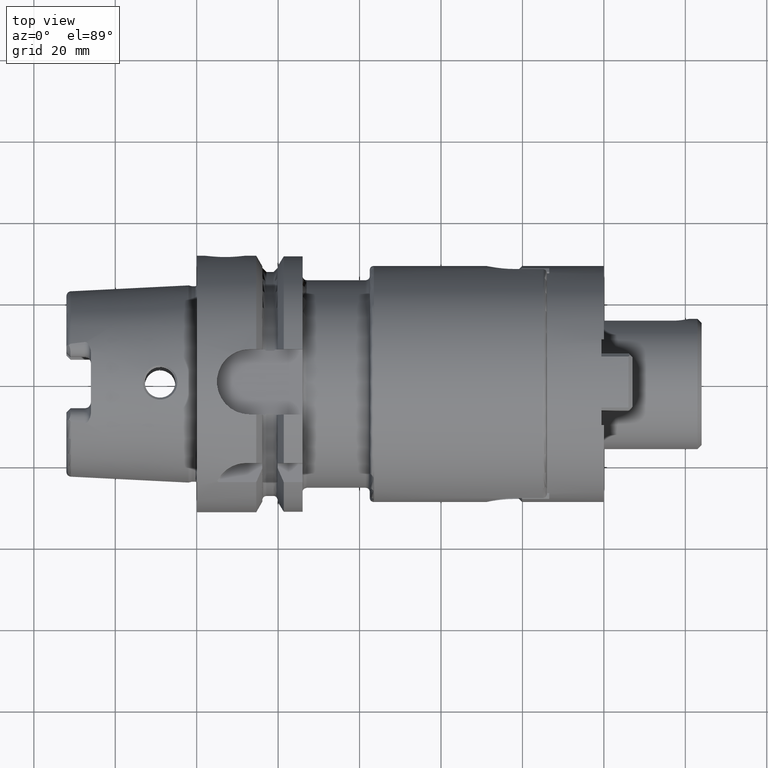
[diagram: clean part render]
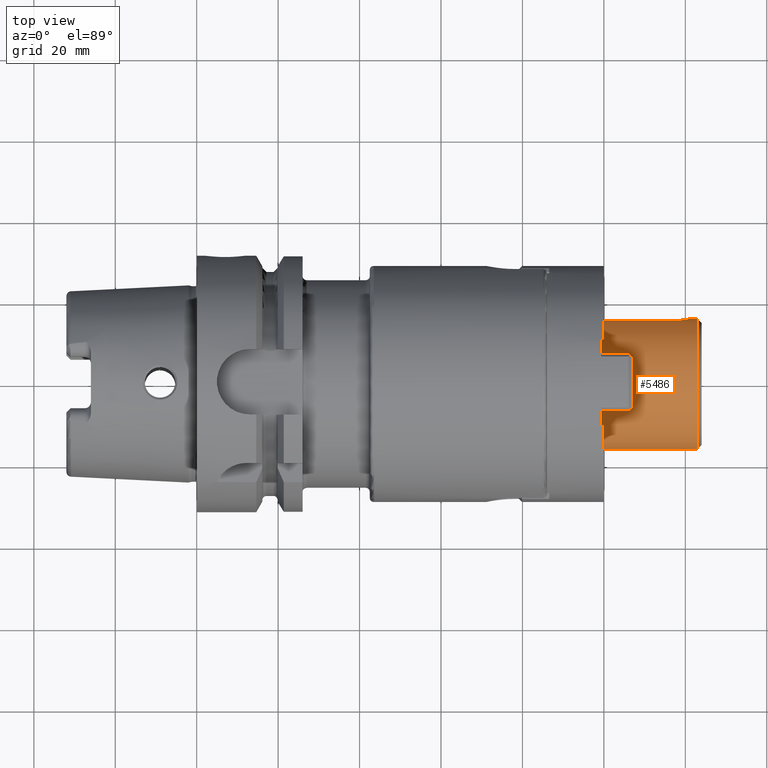
[diagram: same view with one face highlighted and labeled with its STEP entity id]
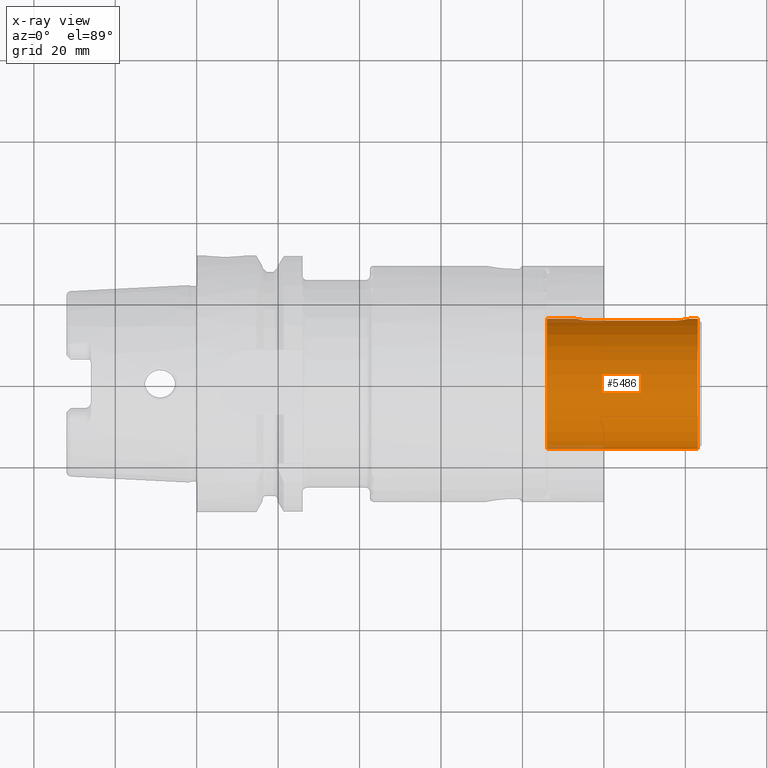
[diagram: x-ray of the same camera — body ghosted, the highlighted face saturated]
A machine part, top view. The second image highlights one B-rep face of the part: STEP entity #5486.
The next image is the same camera in x-ray: the body ghosted, the highlighted face saturated — about 2% of this face is hidden behind the body in this view.
In plain terms, the highlighted cylindrical surface (partial cylindrical patch) has radius 16 mm, axis along (1, 0, 0).
Its self-contained STEP definition (entity closure, byte-faithful):
#1717=CARTESIAN_POINT('',(8.6E1,0.E0,0.E0));
#1718=DIRECTION('',(1.E0,0.E0,0.E0));
#1719=DIRECTION('',(0.E0,1.E0,0.E0));
#1720=AXIS2_PLACEMENT_3D('',#1717,#1718,#1719);
#1751=CARTESIAN_POINT('',(9.7E1,1.549193338483E1,4.E0));
#1752=CARTESIAN_POINT('',(9.682754625117E1,1.549193338483E1,4.E0));
#1753=CARTESIAN_POINT('',(9.648490050717E1,1.549763689665E1,3.978016313828E0));
#1754=CARTESIAN_POINT('',(9.597111649558E1,1.552333121321E1,3.877139360685E0));
#1755=CARTESIAN_POINT('',(9.547731858337E1,1.556408795040E1,3.711200175580E0));
#1756=CARTESIAN_POINT('',(9.500268212371E1,1.561795270892E1,3.478997782392E0));
#1757=CARTESIAN_POINT('',(9.456439721350E1,1.568039695486E1,3.187609020525E0));
#1758=CARTESIAN_POINT('',(9.416385215560E1,1.574795166074E1,2.837391082703E0));
#1759=CARTESIAN_POINT('',(9.381430736657E1,1.581505117669E1,2.438064060044E0));
#1760=CARTESIAN_POINT('',(9.352213755215E1,1.587683135682E1,1.999358967834E0));
#1761=CARTESIAN_POINT('',(9.328975746136E1,1.592964315947E1,1.524965401602E0));
#1762=CARTESIAN_POINT('',(9.312340991902E1,1.596942629393E1,1.031125087648E0));
#1763=CARTESIAN_POINT('',(9.302202020907E1,1.599447139945E1,5.158676151810E-1));
#1764=CARTESIAN_POINT('',(9.3E1,1.6E1,1.726405151608E-1));
#1765=CARTESIAN_POINT('',(9.3E1,1.6E1,0.E0));
#1767=DIRECTION('',(1.E0,0.E0,0.E0));
#1768=VECTOR('',#1767,2.E1);
#1769=CARTESIAN_POINT('',(9.7E1,1.549193338483E1,4.E0));
#1770=LINE('',#1769,#1768);
#1771=CARTESIAN_POINT('',(1.21E2,1.6E1,1.226682872897E-14));
#1772=CARTESIAN_POINT('',(1.21E2,1.6E1,1.726589244203E-1));
#1773=CARTESIAN_POINT('',(1.209779666288E2,1.599446815581E1,5.158800734638E-1));
#1774=CARTESIAN_POINT('',(1.208766751200E2,1.596944731320E1,1.030754237697E0));
#1775=CARTESIAN_POINT('',(1.207104093979E2,1.592968189404E1,1.524578119858E0));
#1776=CARTESIAN_POINT('',(1.204780103247E2,1.587686451484E1,1.999089924386E0));
#1777=CARTESIAN_POINT('',(1.201860066259E2,1.581511406795E1,2.437661759897E0));
#1778=CARTESIAN_POINT('',(1.198362642769E2,1.574797228357E1,2.837283258798E0));
#1779=CARTESIAN_POINT('',(1.194358669655E2,1.568043901818E1,3.187399225475E0));
#1780=CARTESIAN_POINT('',(1.189975189646E2,1.561797673711E1,3.478894155104E0));
#1781=CARTESIAN_POINT('',(1.185227472522E2,1.556409439757E1,3.711173319233E0));
#1782=CARTESIAN_POINT('',(1.180289885413E2,1.552333698612E1,3.877116550135E0));
#1783=CARTESIAN_POINT('',(1.175149776952E2,1.549763141467E1,3.978037807507E0));
#1784=CARTESIAN_POINT('',(1.171723987797E2,1.549193338483E1,4.E0));
#1785=CARTESIAN_POINT('',(1.17E2,1.549193338483E1,4.E0));
#1787=CARTESIAN_POINT('',(1.23E2,0.E0,0.E0));
#1788=DIRECTION('',(-1.E0,0.E0,0.E0));
#1789=DIRECTION('',(0.E0,-1.E0,0.E0));
#1790=AXIS2_PLACEMENT_3D('',#1787,#1788,#1789);
#1812=DIRECTION('',(-1.E0,0.E0,0.E0));
#1813=VECTOR('',#1812,7.E0);
#1814=CARTESIAN_POINT('',(9.3E1,1.6E1,0.E0));
#1815=LINE('',#1814,#1813);
#1816=DIRECTION('',(-1.E0,-6.337273048671E-14,-7.077645286451E-13));
#1817=VECTOR('',#1816,3.7E1);
#1818=CARTESIAN_POINT('',(1.23E2,-1.6E1,2.618598126995E-11));
#1819=LINE('',#1818,#1817);
#1825=DIRECTION('',(-1.E0,1.174171870842E-12,1.309892488947E-11));
#1826=VECTOR('',#1825,2.000000000002E0);
#1827=CARTESIAN_POINT('',(1.23E2,1.6E1,-2.618558295025E-11));
#1828=LINE('',#1827,#1826);
#3481=CARTESIAN_POINT('',(8.6E1,1.6E1,0.E0));
#3482=CARTESIAN_POINT('',(8.6E1,-1.6E1,0.E0));
#3483=VERTEX_POINT('',#3481);
#3484=VERTEX_POINT('',#3482);
#3485=CARTESIAN_POINT('',(1.23E2,1.6E1,0.E0));
#3486=CARTESIAN_POINT('',(1.23E2,-1.6E1,0.E0));
#3487=VERTEX_POINT('',#3485);
#3488=VERTEX_POINT('',#3486);
#3551=VERTEX_POINT('',#1751);
#3552=VERTEX_POINT('',#1765);
#3553=CARTESIAN_POINT('',(1.17E2,1.549193338483E1,4.E0));
#3554=VERTEX_POINT('',#3553);
#3555=VERTEX_POINT('',#1771);
#5464=CARTESIAN_POINT('',(2.11E1,0.E0,0.E0));
#5465=DIRECTION('',(1.E0,0.E0,0.E0));
#5466=DIRECTION('',(0.E0,-1.E0,0.E0));
#5467=AXIS2_PLACEMENT_3D('',#5464,#5465,#5466);
#5468=CYLINDRICAL_SURFACE('',#5467,1.6E1);
#5470=ORIENTED_EDGE('',*,*,#5469,.F.);
#5472=ORIENTED_EDGE('',*,*,#5471,.T.);
#5474=ORIENTED_EDGE('',*,*,#5473,.F.);
#5476=ORIENTED_EDGE('',*,*,#5475,.F.);
#5478=ORIENTED_EDGE('',*,*,#5477,.F.);
#5480=ORIENTED_EDGE('',*,*,#5479,.T.);
#5481=ORIENTED_EDGE('',*,*,#5457,.F.);
#5483=ORIENTED_EDGE('',*,*,#5482,.F.);
#5484=EDGE_LOOP('',(#5470,#5472,#5474,#5476,#5478,#5480,#5481,#5483));
#5485=FACE_OUTER_BOUND('',#5484,.F.);
#5486=ADVANCED_FACE('',(#5485),#5468,.T.);
#1721=CIRCLE('',#1720,1.6E1);
#1766=B_SPLINE_CURVE_WITH_KNOTS('',3,(#1751,#1752,#1753,#1754,#1755,#1756,#1757,
#1758,#1759,#1760,#1761,#1762,#1763,#1764,#1765),.UNSPECIFIED.,.F.,.F.,(4,1,1,1,
1,1,1,1,1,1,1,1,4),(0.E0,8.333333333333E-2,1.666666666667E-1,2.5E-1,
3.333333333333E-1,4.166666666667E-1,5.E-1,5.833333333333E-1,6.666666666667E-1,
7.5E-1,8.333333333333E-1,9.166666666667E-1,1.E0),.UNSPECIFIED.);
#1786=B_SPLINE_CURVE_WITH_KNOTS('',3,(#1771,#1772,#1773,#1774,#1775,#1776,#1777,
#1778,#1779,#1780,#1781,#1782,#1783,#1784,#1785),.UNSPECIFIED.,.F.,.F.,(4,1,1,1,
1,1,1,1,1,1,1,1,4),(0.E0,8.333333333333E-2,1.666666666667E-1,2.5E-1,
3.333333333333E-1,4.166666666667E-1,5.E-1,5.833333333333E-1,6.666666666667E-1,
7.5E-1,8.333333333333E-1,9.166666666667E-1,1.E0),.UNSPECIFIED.);
#1791=CIRCLE('',#1790,1.6E1);
#5457=EDGE_CURVE('',#3483,#3484,#1721,.T.);
#5469=EDGE_CURVE('',#3551,#3552,#1766,.T.);
#5471=EDGE_CURVE('',#3551,#3554,#1770,.T.);
#5473=EDGE_CURVE('',#3555,#3554,#1786,.T.);
#5475=EDGE_CURVE('',#3487,#3555,#1828,.T.);
#5477=EDGE_CURVE('',#3488,#3487,#1791,.T.);
#5479=EDGE_CURVE('',#3488,#3484,#1819,.T.);
#5482=EDGE_CURVE('',#3552,#3483,#1815,.T.);